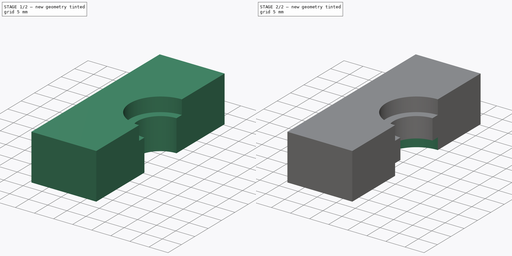
[diagram: build sequence overview — one tinted view per stage of 2, left to right]
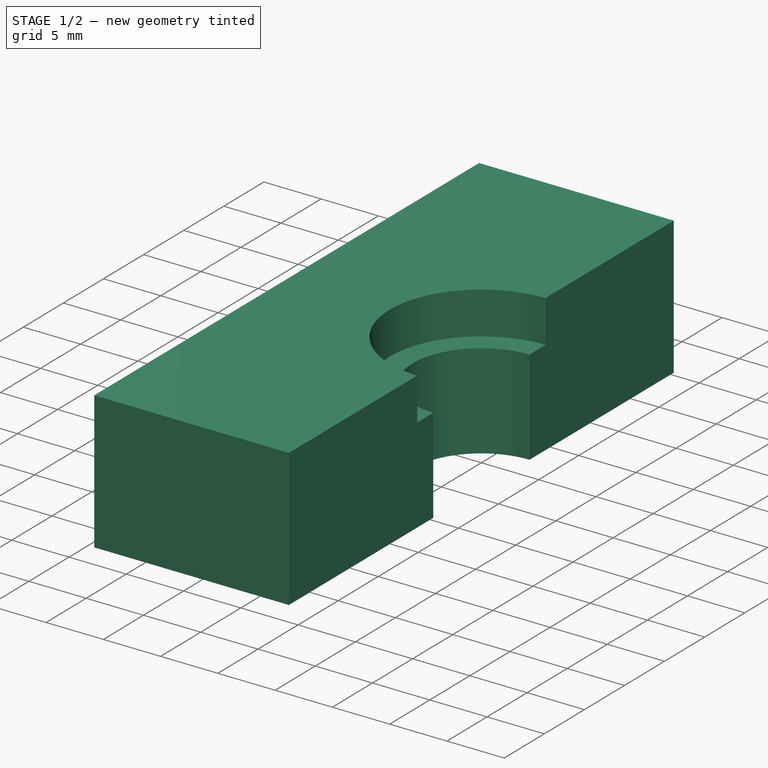
[diagram: stage 1 of 2 — iso view after this stage's code; geometry added in this stage tinted green]
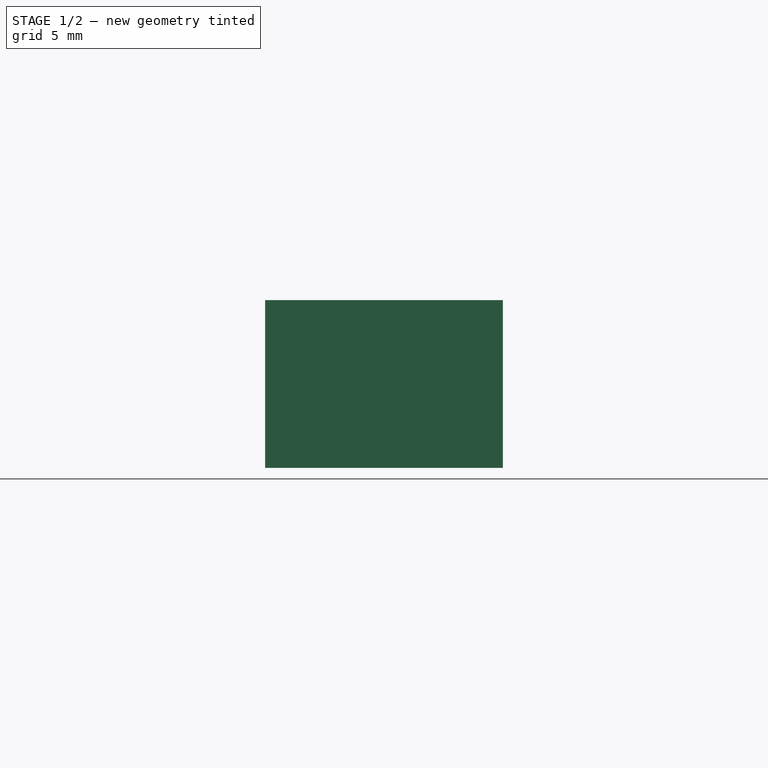
[diagram: stage 1 of 2 — front view after this stage's code; geometry added in this stage tinted green]
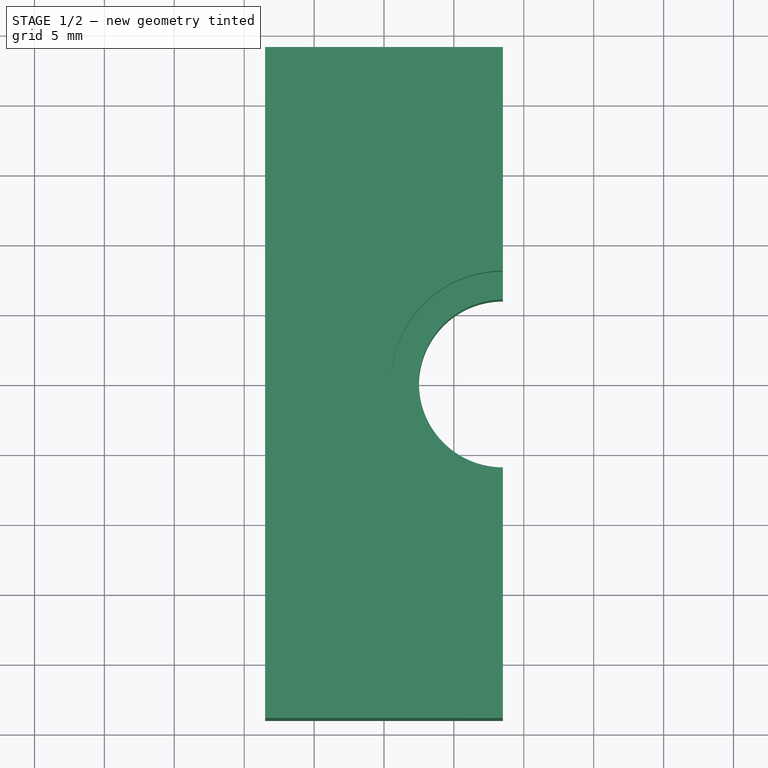
[diagram: stage 1 of 2 — top view after this stage's code; geometry added in this stage tinted green]
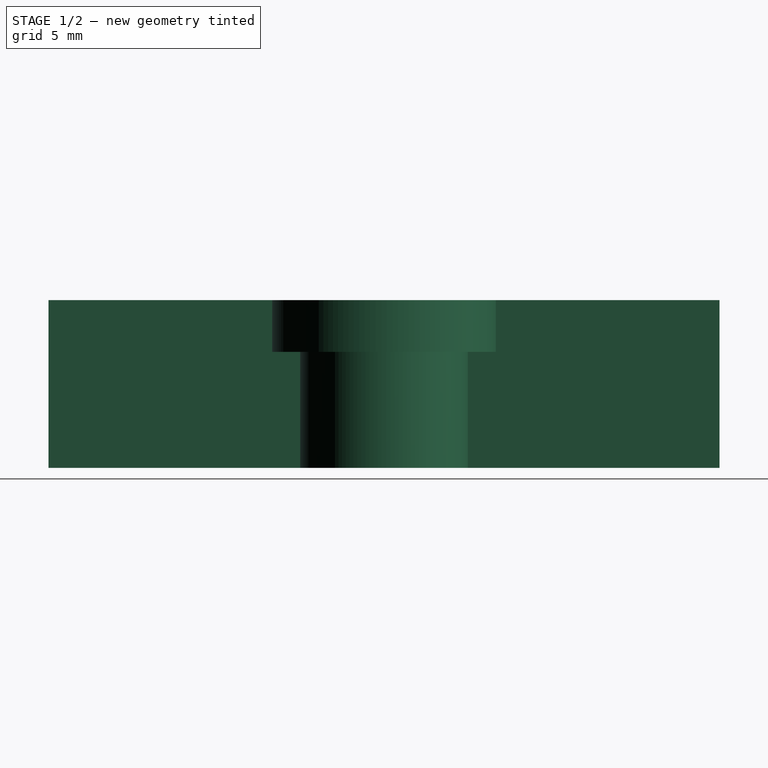
[diagram: stage 1 of 2 — right view after this stage's code; geometry added in this stage tinted green]
FCSTD DOCUMENT  (FreeCAD 0.16RUnknown)
Label: single-hotend-clamp
License: All rights reserved
LicenseURL: http://en.wikipedia.org/wiki/All_rights_reserved
objects: Sketcher::SketchObject×3, PartDesign::Pocket×2, PartDesign::Pad×1
note: 9 computed .brp shape members not serialized (recipe doc carries the construction recipe); baked Part::Feature solids carry a one-line shape summary decoded from their .brp

FEATURE [Sketcher::SketchObject] Sketch
  sketch-geometry (6):
    g0: LineSegment StartX=8.5 StartY=24 StartZ=0 EndX=-8.5 EndY=24 EndZ=0
    g1: LineSegment StartX=-8.5 StartY=24 StartZ=0 EndX=-8.5 EndY=-24 EndZ=0
    g2: LineSegment StartX=-8.5 StartY=-24 StartZ=0 EndX=8.5 EndY=-24 EndZ=0
    g3: LineSegment StartX=8.5 StartY=-24 StartZ=0 EndX=8.5 EndY=-6 EndZ=0
    g4: LineSegment StartX=8.5 StartY=24 StartZ=0 EndX=8.5 EndY=6 EndZ=0
    g5: ArcOfCircle CenterX=8.5 CenterY=0 CenterZ=0 NormalX=0 NormalY=0 NormalZ=1 Radius=6 StartAngle=1.5708 EndAngle=4.71239
  constraints (19):
    c: Horizontal(g0)
    c: Coincident(g0,g1)
    c: Vertical(g1)
    c: Coincident(g1,g2)
    c: Horizontal(g2)
    c: Coincident(g2,g3)
    c: Coincident(g4,g0)
    c: Coincident(g5,g4)
    c: Coincident(g5,g3)
    c: Vertical(g4)
    c: Vertical(g3)
    c: Radius(g5) = 6
    c: DistanceY(g5,g4) = 6
    c: DistanceY(g3,g5) = 6
    c: DistanceX(g0,g0) = 17
    c: DistanceY(g1,g1) = 48
    c: DistanceY(g5,g0) = 24
    c: DistanceX(g0,g-1) = 8.5
    c: DistanceY(g-1,g0) = 24
FEATURE [PartDesign::Pad] Pad
  Length = 12
  Length2 = 100
  Midplane = true
  Sketch = -> Sketch
  Type = 0
FEATURE [Sketcher::SketchObject] Sketch001
  Placement = pos=(0,0,6) rot=(0,0,1;0rad)
  Support = -> Pad [Face8]
  sketch-geometry (4):
    g0: ArcOfCircle CenterX=8.49997 CenterY=0 CenterZ=0 NormalX=0 NormalY=0 NormalZ=1 Radius=8 StartAngle=1.57079 EndAngle=4.71239
    g1: LineSegment StartX=8.5 StartY=8 StartZ=0 EndX=24.4999 EndY=7.99995 EndZ=0
    g2: LineSegment StartX=24.4999 StartY=7.99995 StartZ=0 EndX=24.4999 EndY=-8 EndZ=0
    g3: LineSegment StartX=24.4999 StartY=-8 StartZ=0 EndX=8.49997 EndY=-8 EndZ=0
  constraints (12):
    c: PointOnObject(g0,g-1)
    c: Radius(g0) = 8
    c: DistanceY(g0,g0) = 8
    c: DistanceY(g0,g0) = 8
    c: DistanceX(g-1,g0) = 8.5
    c: Tangent(g0,g1) = 1.5708
    c: Coincident(g1,g2)
    c: Vertical(g2)
    c: Coincident(g2,g3)
    c: Horizontal(g3)
    c: Equal(g1,g2)
    c: Coincident(g3,g0)
FEATURE [PartDesign::Pocket] Pocket
  Length = 3.7
  Sketch = -> Sketch001
  Type = 0
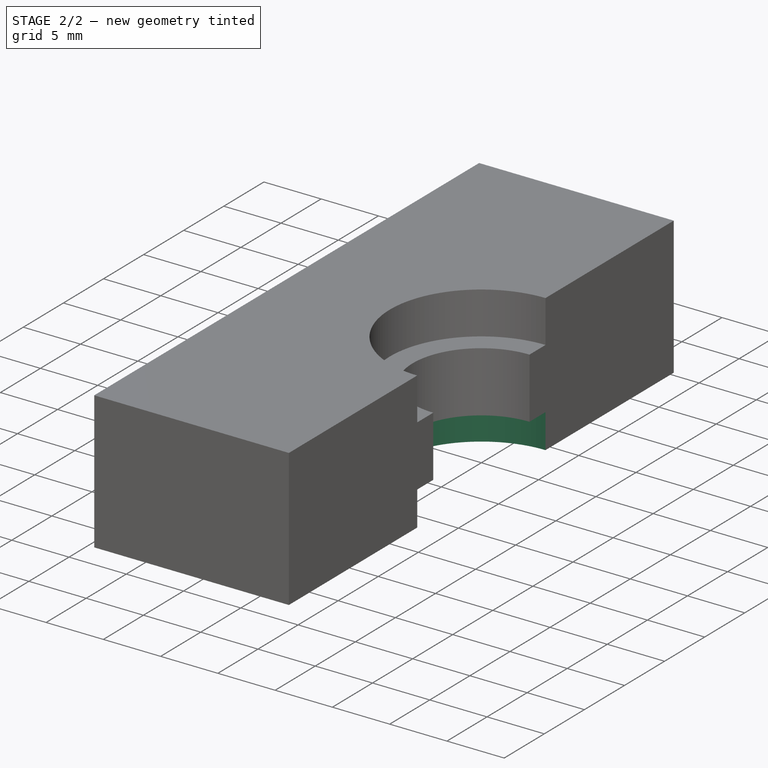
[diagram: stage 2 of 2 — iso view after this stage's code; geometry added in this stage tinted green]
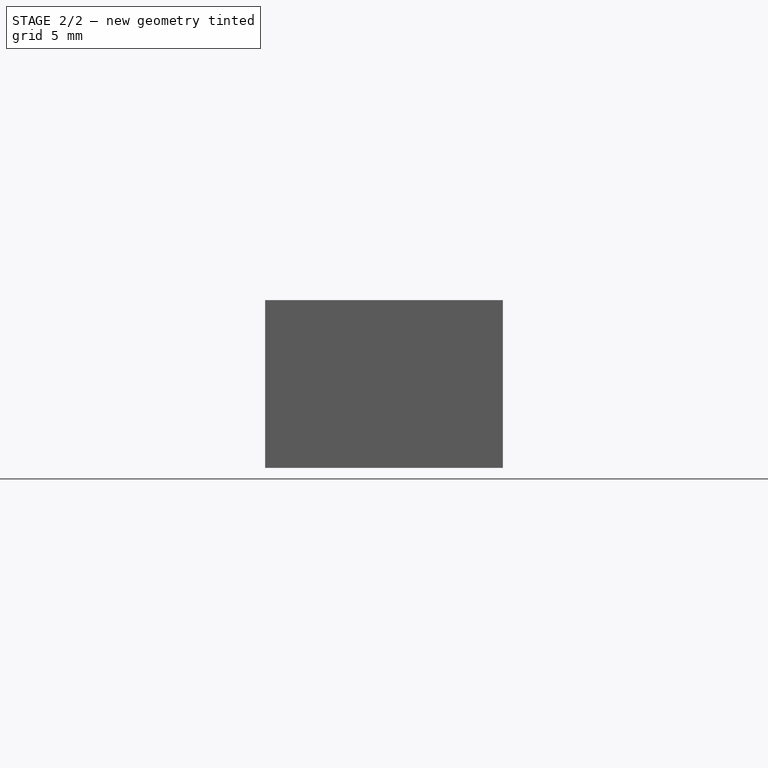
[diagram: stage 2 of 2 — front view after this stage's code; geometry added in this stage tinted green]
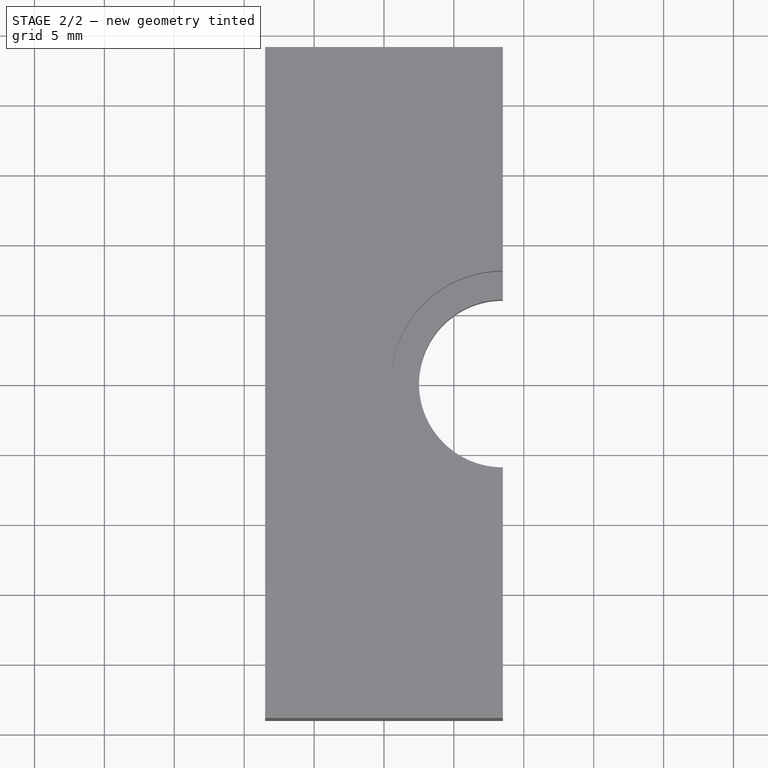
[diagram: stage 2 of 2 — top view after this stage's code; geometry added in this stage tinted green]
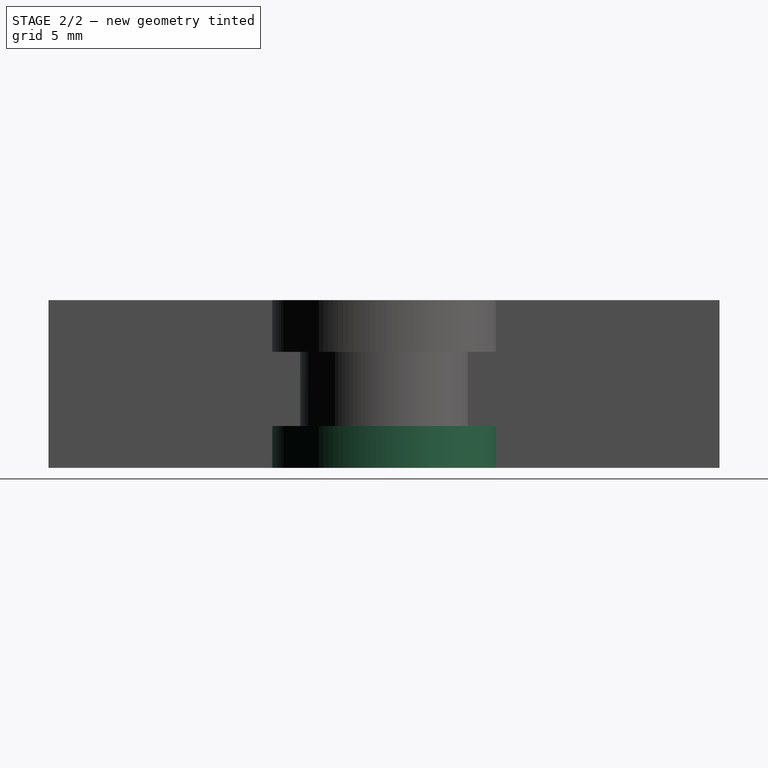
[diagram: stage 2 of 2 — right view after this stage's code; geometry added in this stage tinted green]
FEATURE [Sketcher::SketchObject] Sketch002
  Placement = pos=(0,0,-6) rot=(1,0,0;3.14159rad)
  Support = -> Pocket [Face4]
  sketch-geometry (4):
    g0: ArcOfCircle CenterX=8.49999 CenterY=0 CenterZ=0 NormalX=0 NormalY=0 NormalZ=1 Radius=8 StartAngle=1.57079 EndAngle=4.71239
    g1: LineSegment StartX=8.5 StartY=8 StartZ=0 EndX=24.5 EndY=7.99997 EndZ=0
    g2: LineSegment StartX=24.5 StartY=7.99997 StartZ=0 EndX=24.5 EndY=-8 EndZ=0
    g3: LineSegment StartX=24.5 StartY=-8 StartZ=0 EndX=8.49999 EndY=-8 EndZ=0
  constraints (12):
    c: PointOnObject(g0,g-1)
    c: Radius(g0) = 8
    c: DistanceY(g0,g0) = 8
    c: DistanceY(g0,g0) = 8
    c: Tangent(g0,g1) = 1.5708
    c: Coincident(g1,g2)
    c: Vertical(g2)
    c: Coincident(g2,g3)
    c: Coincident(g3,g0)
    c: Horizontal(g3)
    c: Equal(g1,g2)
    c: DistanceX(g-1,g0) = 8.5
FEATURE [PartDesign::Pocket] Pocket001
  Length = 3
  Sketch = -> Sketch002
  Type = 0
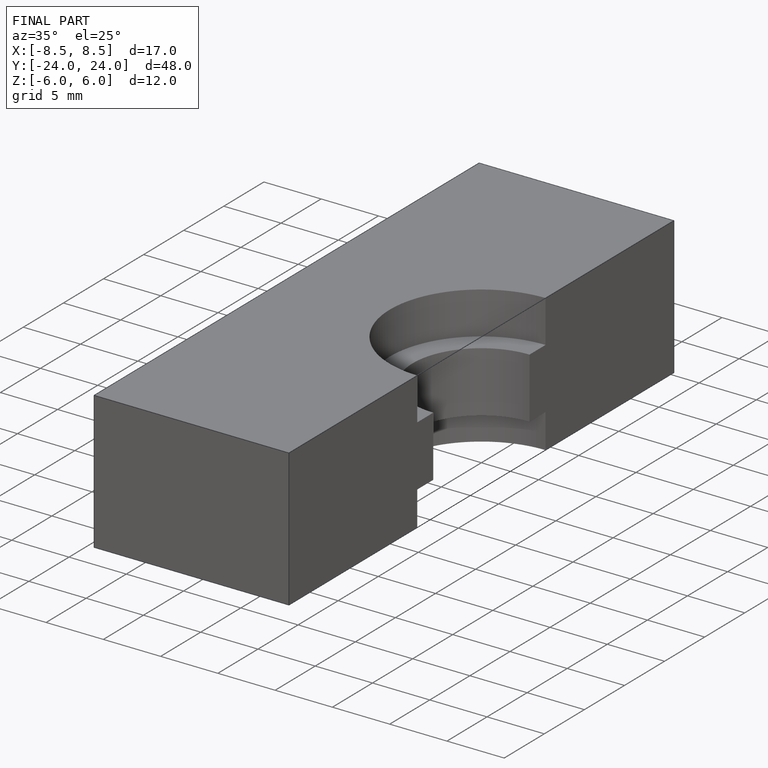
[diagram: finished part — iso view with bounding-box wireframe]
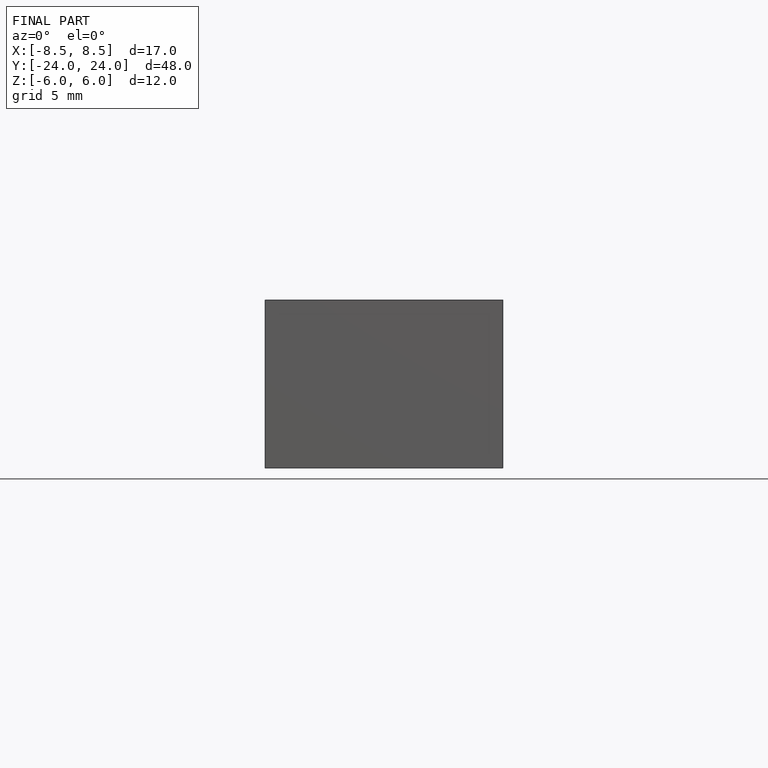
[diagram: finished part — front view with bounding-box wireframe]
